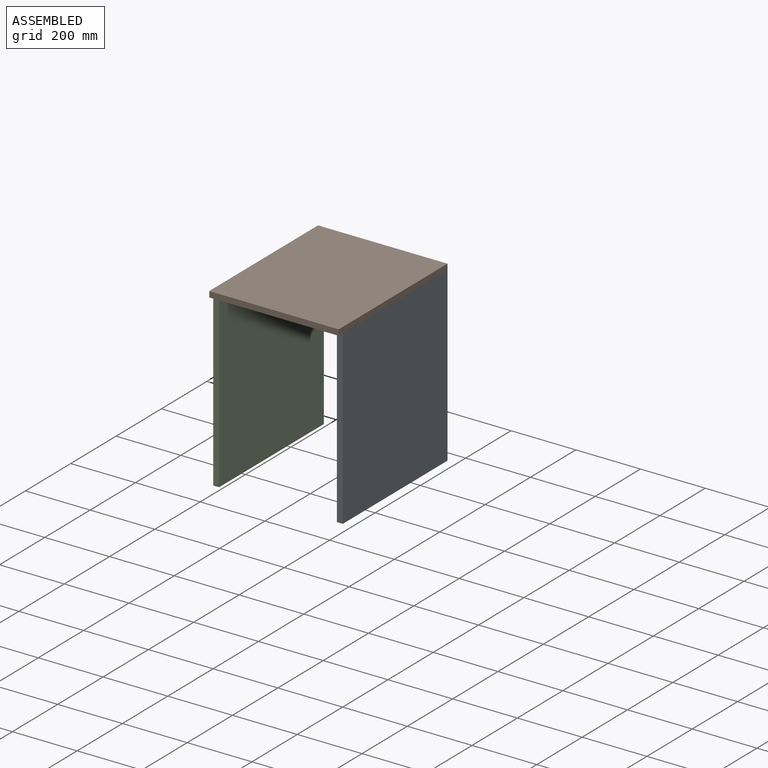
[diagram: assembled view]
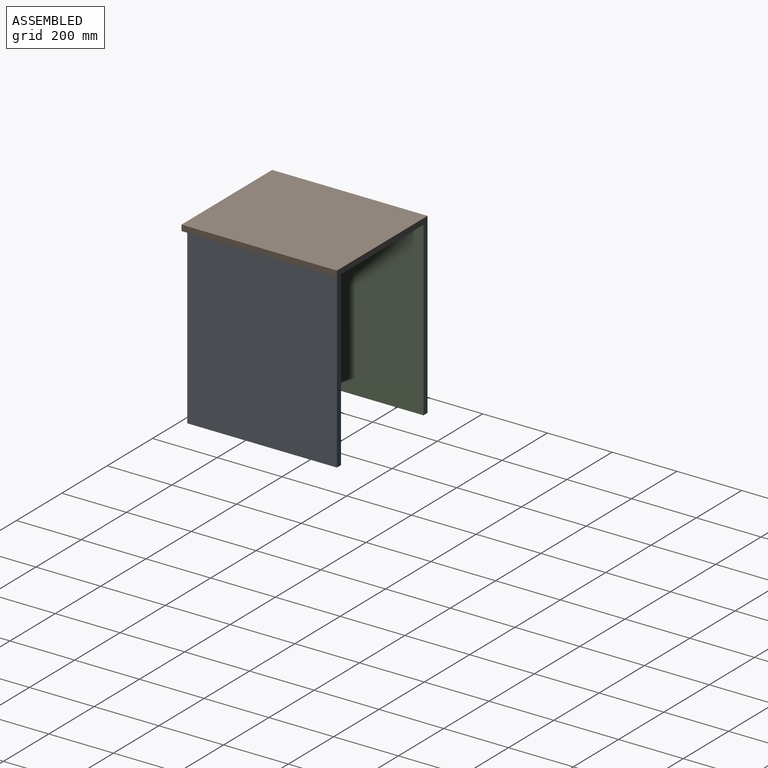
[diagram: assembled view, second angle]
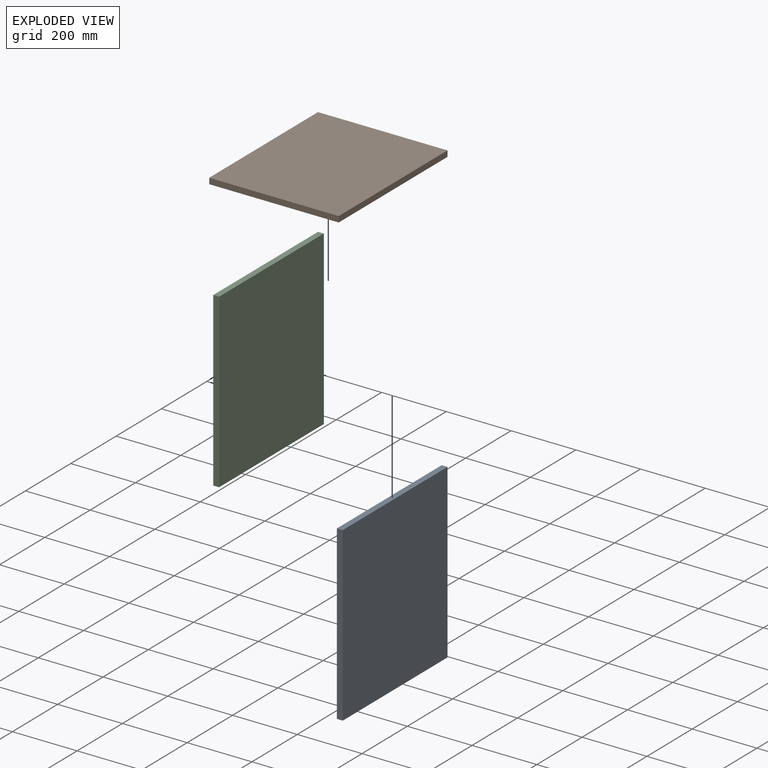
[diagram: exploded view]
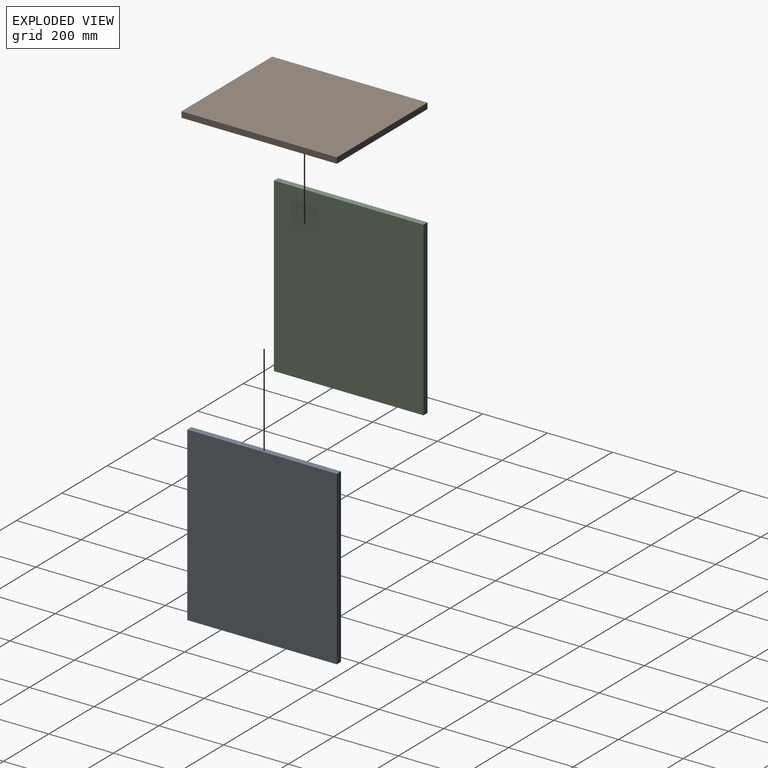
[diagram: exploded view, second angle]
ASSEMBLY  parts=3 mates=6
PART A: 6 faces, bbox 18x462x532 mm
  f0: plane 532x18mm, normal (0,-1,0), area 9576mm2, adj f1,f3,f4,f5
  f1: plane 462x18mm, normal (0,0,-1), area 8316mm2, adj f0,f2,f4,f5
  f2: plane 532x18mm, normal (0,1,0), area 9576mm2, adj f1,f3,f4,f5
  f3: plane 462x18mm, normal (0,0,1), area 8316mm2, adj f0,f2,f4,f5
  f4: plane 532x462mm, normal (1,0,0), area 245784mm2, adj f0,f1,f2,f3
  f5: plane 532x462mm, normal (-1,0,0), area 245784mm2, adj f0,f1,f2,f3
PART B: 6 faces, bbox 400x480x18 mm
  f0: plane 400x18mm, normal (0,1,0), area 7200mm2, adj f1,f3,f4,f5
  f1: plane 480x18mm, normal (-1,0,0), area 8640mm2, adj f0,f2,f4,f5
  f2: plane 400x18mm, normal (0,-1,0), area 7200mm2, adj f1,f3,f4,f5
  f3: plane 480x18mm, normal (1,0,0), area 8640mm2, adj f0,f2,f4,f5
  f4: plane 480x400mm, normal (0,0,1), area 192000mm2, adj f0,f1,f2,f3
  f5: plane 480x400mm, normal (0,0,-1), area 192000mm2, adj f0,f1,f2,f3
PART C: same geometry as A
PLACE A t=(244.45,-288.29,-355.95)mm
PLACE B t=(-137.55,173.71,176.05)mm
PLACE C t=(-137.55,-288.29,-355.95)mm
MATE planar C.f2 <-> B.f0  axis (0,1,0) through (-128.55,173.71,-89.95)mm
MATE planar A.f3 <-> B.f5  axis (0,0,1) through (253.45,-57.29,176.05)mm
MATE planar C.f3 <-> B.f5  axis (0,0,1) through (-128.55,-57.29,176.05)mm
MATE planar C.f5 <-> B.f1  axis (-1,0,0) through (-137.55,-57.29,-89.95)mm
MATE planar A.f4 <-> B.f3  axis (1,0,0) through (262.45,-57.29,-89.95)mm
MATE planar A.f2 <-> B.f0  axis (0,1,0) through (253.45,173.71,-89.95)mm
